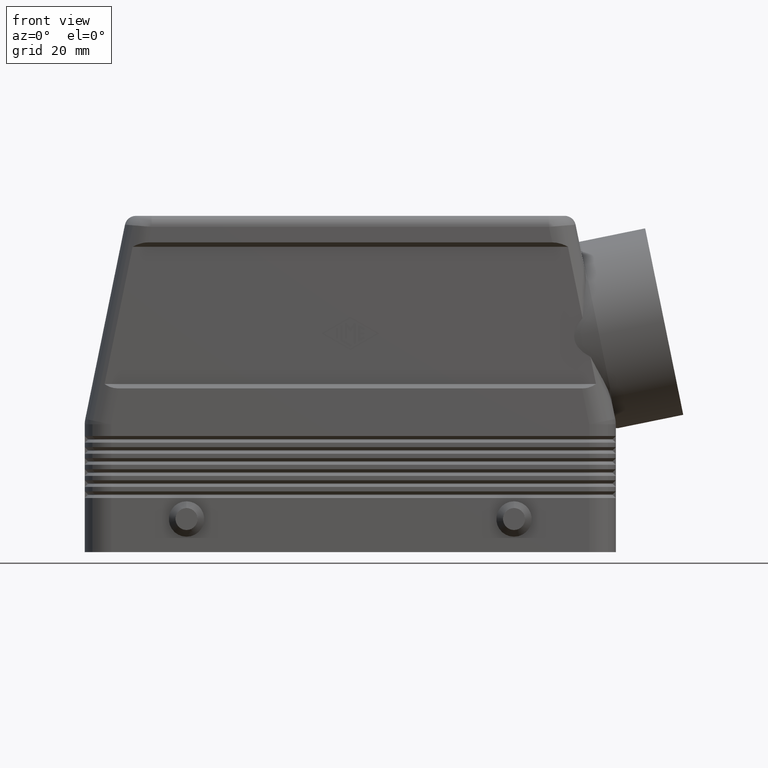
[diagram: clean part render]
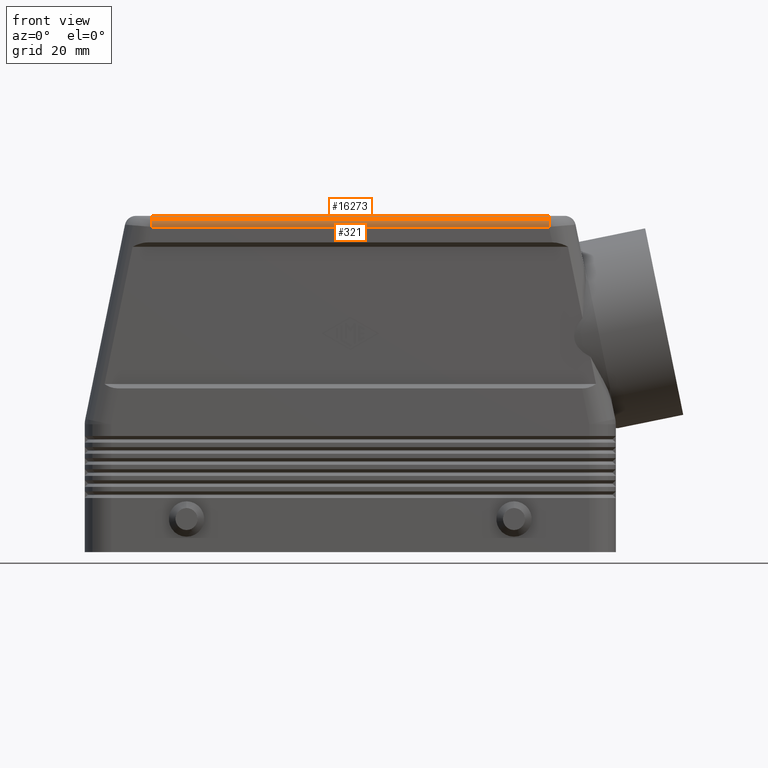
[diagram: same view with one multi-face feature highlighted, each face labeled with its STEP entity id]
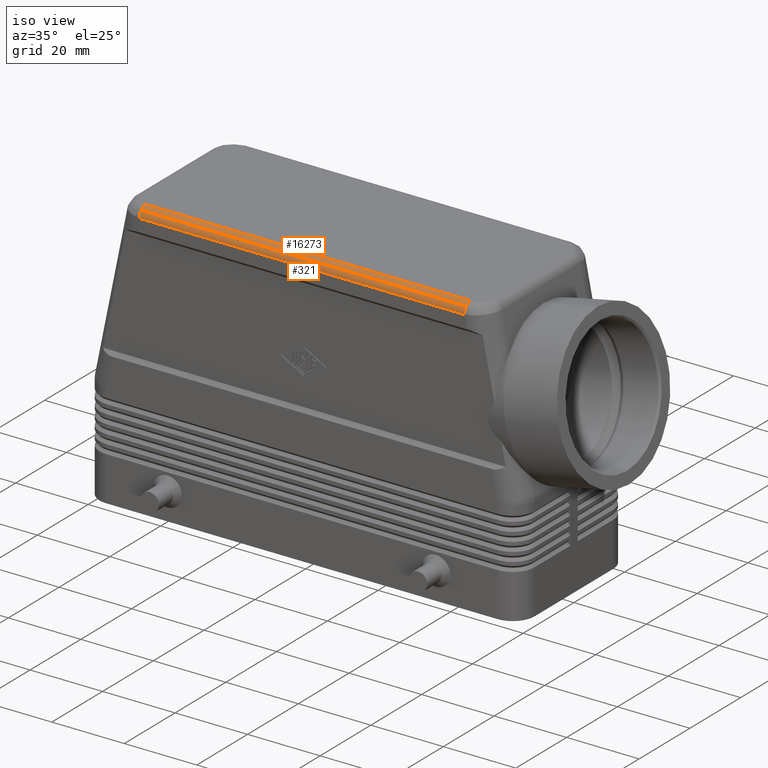
[diagram: same view with one multi-face feature highlighted, each face labeled with its STEP entity id]
A machine part, front view. The highlighted faces form ONE feature: a constant-radius fillet chain: 2 tangent blend faces with common blend radius 2.5 mm. The faces share edges in the B-rep.
A second angle (iso view) of the same feature is appended — it is thin or edge-on in the first view.
Their STEP definitions:
[1] entity #16273 (Cylinder):
#285=CARTESIAN_POINT('',(-44.886815926838217,-20.767766952966369,75.267766952966369));
#286=VERTEX_POINT('',#285);
#287=CARTESIAN_POINT('',(44.886815926838231,-20.767766952966369,75.267766952966369));
#288=VERTEX_POINT('',#287);
#289=CARTESIAN_POINT('',(-44.886815926838217,-20.767766952966369,75.267766952966369));
#290=DIRECTION('',(1.0,0.0,0.0));
#291=VECTOR('',#290,89.773631853676449);
#292=LINE('',#289,#291);
#293=EDGE_CURVE('',#286,#288,#292,.T.);
#15883=CARTESIAN_POINT('',(-44.886815926838217,-19.0,76.0));
#15884=VERTEX_POINT('',#15883);
#15892=CARTESIAN_POINT('',(44.886815926838224,-19.0,76.0));
#15893=VERTEX_POINT('',#15892);
#15894=CARTESIAN_POINT('',(44.886815926838224,-19.0,76.0));
#15895=DIRECTION('',(-1.0,0.0,0.0));
#15896=VECTOR('',#15895,89.773631853676449);
#15897=LINE('',#15894,#15896);
#15898=EDGE_CURVE('',#15893,#15884,#15897,.T.);
#15962=CARTESIAN_POINT('',(44.886815926838224,-19.0,73.500000000000000));
#15963=DIRECTION('',(1.0,0.0,0.0));
#15964=DIRECTION('',(0.0,0.0,1.0));
#15965=AXIS2_PLACEMENT_3D('',#15962,#15963,#15964);
#15966=CIRCLE('',#15965,2.500000000000000);
#15967=EDGE_CURVE('',#15893,#288,#15966,.T.);
#16044=CARTESIAN_POINT('',(-44.886815926838217,-19.0,73.500000000000000));
#16045=DIRECTION('',(-1.0,0.0,0.0));
#16046=DIRECTION('',(0.0,-1.0,0.0));
#16047=AXIS2_PLACEMENT_3D('',#16044,#16045,#16046);
#16048=CIRCLE('',#16047,2.500000000000000);
#16049=EDGE_CURVE('',#286,#15884,#16048,.T.);
#16262=CARTESIAN_POINT('',(25.250000000000004,-19.0,73.500000000000000));
#16263=DIRECTION('',(1.0,0.0,0.0));
#16264=DIRECTION('',(0.0,-0.707106781186547,0.707106781186547));
#16265=AXIS2_PLACEMENT_3D('',#16262,#16263,#16264);
#16266=CYLINDRICAL_SURFACE('',#16265,2.500000000000000);
#16267=ORIENTED_EDGE('',*,*,#293,.T.);
#16268=ORIENTED_EDGE('',*,*,#15967,.F.);
#16269=ORIENTED_EDGE('',*,*,#15898,.T.);
#16270=ORIENTED_EDGE('',*,*,#16049,.F.);
#16271=EDGE_LOOP('',(#16267,#16268,#16269,#16270));
#16272=FACE_OUTER_BOUND('',#16271,.T.);
#16273=ADVANCED_FACE('',(#16272),#16266,.T.);
[2] entity #321 (Cylinder):
#280=CARTESIAN_POINT('',(25.250000000000004,-19.0,73.500000000000000));
#281=DIRECTION('',(1.0,0.0,0.0));
#282=DIRECTION('',(0.0,-0.707106781186547,0.707106781186547));
#283=AXIS2_PLACEMENT_3D('',#280,#281,#282);
#284=CYLINDRICAL_SURFACE('',#283,2.500000000000000);
#285=CARTESIAN_POINT('',(-44.886815926838217,-20.767766952966369,75.267766952966369));
#286=VERTEX_POINT('',#285);
#287=CARTESIAN_POINT('',(44.886815926838231,-20.767766952966369,75.267766952966369));
#288=VERTEX_POINT('',#287);
#289=CARTESIAN_POINT('',(-44.886815926838217,-20.767766952966369,75.267766952966369));
#290=DIRECTION('',(1.0,0.0,0.0));
#291=VECTOR('',#290,89.773631853676449);
#292=LINE('',#289,#291);
#293=EDGE_CURVE('',#286,#288,#292,.T.);
#294=ORIENTED_EDGE('',*,*,#293,.F.);
#295=CARTESIAN_POINT('',(-44.886815926838217,-21.500000000000000,73.500000000000000));
#296=VERTEX_POINT('',#295);
#297=CARTESIAN_POINT('',(-44.886815926838217,-19.0,73.500000000000000));
#298=DIRECTION('',(-1.0,0.0,0.0));
#299=DIRECTION('',(0.0,-1.0,0.0));
#300=AXIS2_PLACEMENT_3D('',#297,#298,#299);
#301=CIRCLE('',#300,2.500000000000000);
#302=EDGE_CURVE('',#296,#286,#301,.T.);
#303=ORIENTED_EDGE('',*,*,#302,.F.);
#304=CARTESIAN_POINT('',(44.886815926838239,-21.500000000000000,73.500000000000000));
#305=VERTEX_POINT('',#304);
#306=CARTESIAN_POINT('',(-44.886815926838217,-21.500000000000000,73.500000000000000));
#307=DIRECTION('',(1.0,0.0,0.0));
#308=VECTOR('',#307,89.773631853676449);
#309=LINE('',#306,#308);
#310=EDGE_CURVE('',#296,#305,#309,.T.);
#311=ORIENTED_EDGE('',*,*,#310,.T.);
#312=CARTESIAN_POINT('',(44.886815926838224,-19.0,73.500000000000000));
#313=DIRECTION('',(1.0,0.0,0.0));
#314=DIRECTION('',(0.0,0.0,1.0));
#315=AXIS2_PLACEMENT_3D('',#312,#313,#314);
#316=CIRCLE('',#315,2.500000000000000);
#317=EDGE_CURVE('',#288,#305,#316,.T.);
#318=ORIENTED_EDGE('',*,*,#317,.F.);
#319=EDGE_LOOP('',(#294,#303,#311,#318));
#320=FACE_OUTER_BOUND('',#319,.T.);
#321=ADVANCED_FACE('',(#320),#284,.T.);